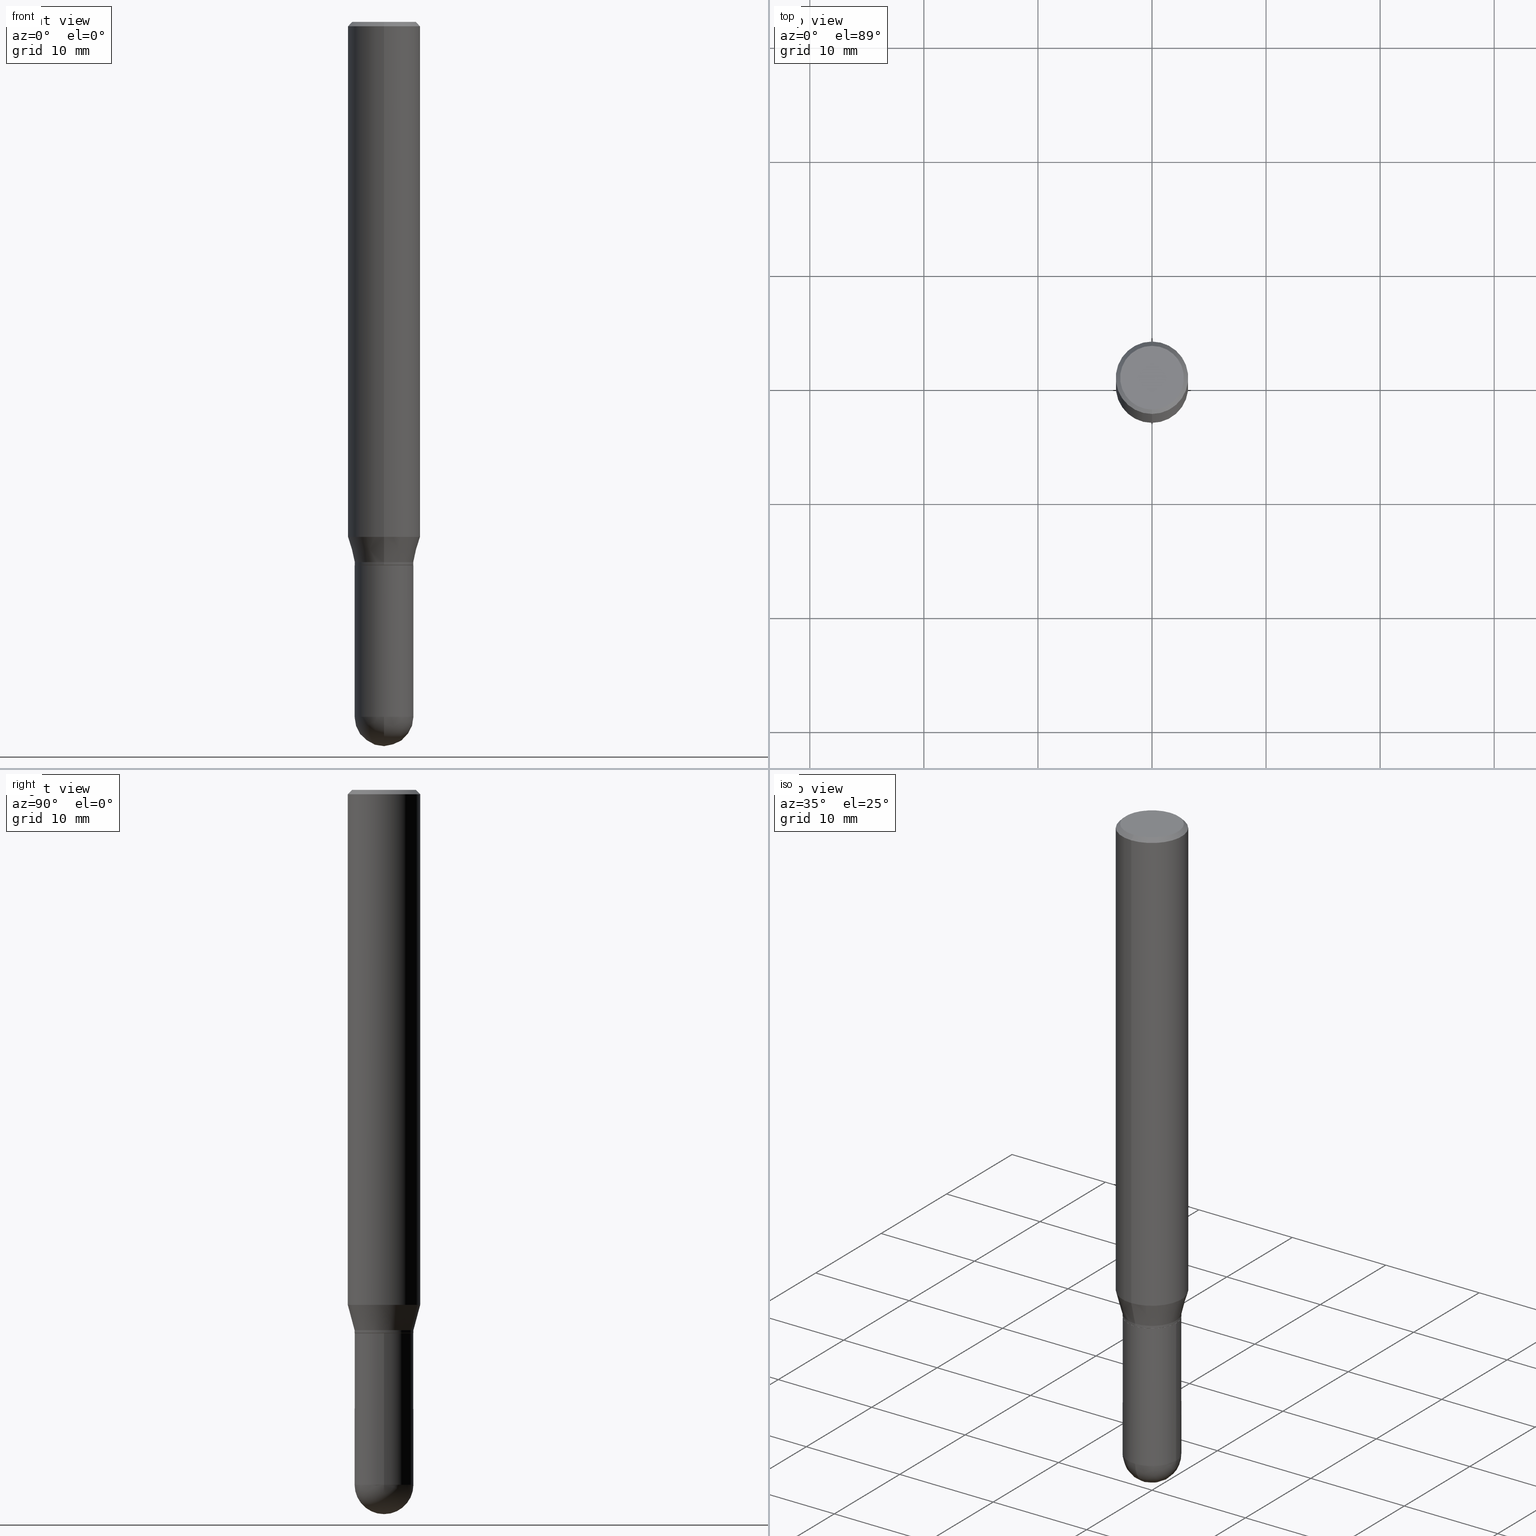
[diagram: canonical four-view strip — front | top / right | iso, engineering-drawing reading convention]
A machine part, canonical four-view strip (front | top / right | iso — engineering-drawing reading convention). The complete STEP part file that produces these views, byte-faithful:
ISO-10303-21;
HEADER;
FILE_DESCRIPTION (( 'STEP AP203' ),
    '1' );
FILE_NAME ('30483.STEP',
    '2024-03-08T15:25:39',
    ( '' ),
    ( '' ),
    'SwSTEP 2.0',
    'SolidWorks 2023',
    '' );
FILE_SCHEMA (( 'CONFIG_CONTROL_DESIGN' ));
ENDSEC;

DATA;
#1 = FACE_OUTER_BOUND ( 'NONE', #202, .T. ) ;
#2 = DIRECTION ( 'NONE',  ( 1.000000000000000000, -6.982962677686258033E-15, 0.000000000000000000 ) ) ;
#3 = DESIGN_CONTEXT ( 'detailed design', #112, 'design' ) ;
#4 = DIRECTION ( 'NONE',  ( -6.982962677686266711E-15, -1.000000000000000000, 3.491458814188467583E-15 ) ) ;
#5 = CARTESIAN_POINT ( 'NONE',  ( 4.585283503251433812E-29, -6.546485276603377605E-15, -1.875000000000000000 ) ) ;
#6 = DATE_AND_TIME ( #499, #166 ) ;
#7 = DIRECTION ( 'NONE',  ( -2.445468806185136597E-29, 3.491481338843145583E-15, 1.000000000000000000 ) ) ;
#8 = VECTOR ( 'NONE', #18, 39.37007874015748143 ) ;
#9 = CARTESIAN_POINT ( 'NONE',  ( 0.1015500000000000985, -8.169455323658661228E-15, -2.398450000000000415 ) ) ;
#10 = DIRECTION ( 'NONE',  ( -2.445484535067431049E-29, 3.491458814188467583E-15, 1.000000000000000000 ) ) ;
#11 = DIRECTION ( 'NONE',  ( -2.445484535067431049E-29, 3.491458814188467583E-15, 1.000000000000000000 ) ) ;
#12 = LINE ( 'NONE', #56, #55 ) ;
#13 = CARTESIAN_POINT ( 'NONE',  ( -7.056283785801518238E-16, -0.1010500000000066068, -1.874999999999999778 ) ) ;
#14 = CARTESIAN_POINT ( 'NONE',  ( -8.728703347107832402E-16, -0.1250000000000000000, 4.364323517735584479E-16 ) ) ;
#15 = CIRCLE ( 'NONE', #320, 0.1015500000000000985 ) ;
#16 = PRODUCT_RELATED_PRODUCT_CATEGORY ( 'detail', '', ( #40 ) ) ;
#17 = DATE_AND_TIME ( #449, #304 ) ;
#18 = DIRECTION ( 'NONE',  ( 1.839019923739600710E-15, 0.2588190451025250138, 0.9659258262890670910 ) ) ;
#19 = ORIENTED_EDGE ( 'NONE', *, *, #26, .F. ) ;
#20 = PERSON_AND_ORGANIZATION ( #507, #98 ) ;
#21 = LINE ( 'NONE', #496, #8 ) ;
#22 = ORIENTED_EDGE ( 'NONE', *, *, #454, .T. ) ;
#23 = LINE ( 'NONE', #417, #159 ) ;
#24 = DATE_AND_TIME ( #495, #109 ) ;
#25 = DIRECTION ( 'NONE',  ( -2.445484535067431049E-29, 3.491458814188467583E-15, 1.000000000000000000 ) ) ;
#26 = EDGE_CURVE ( 'NONE', #209, #344, #445, .T. ) ;
#27 = CIRCLE ( 'NONE', #373, 0.1100000000000000283 ) ;
#28 = PERSON_AND_ORGANIZATION_ROLE ( 'creator' ) ;
#29 = CARTESIAN_POINT ( 'NONE',  ( 4.560828657900758226E-29, -6.511570688461491770E-15, -1.864999999999999991 ) ) ;
#30 = EDGE_LOOP ( 'NONE', ( #210, #235, #354, #468 ) ) ;
#31 = CARTESIAN_POINT ( 'NONE',  ( 0.000000000000000000, 0.000000000000000000, 0.000000000000000000 ) ) ;
#32 = ORIENTED_EDGE ( 'NONE', *, *, #220, .F. ) ;
#33 = EDGE_LOOP ( 'NONE', ( #509, #272, #19, #284, #191 ) ) ;
#34 = CC_DESIGN_DATE_AND_TIME_ASSIGNMENT ( #17, #105, ( #315 ) ) ;
#35 = AXIS2_PLACEMENT_3D ( 'NONE', #5, #169, #490 ) ;
#36 = CONICAL_SURFACE ( 'NONE', #486, 0.1010500000000000703, 0.7853981633974653764 ) ;
#37 = ORIENTED_EDGE ( 'NONE', *, *, #376, .F. ) ;
#38 = COORDINATED_UNIVERSAL_TIME_OFFSET ( 5, 0, .BEHIND. ) ;
#39 = VERTEX_POINT ( 'NONE', #282 ) ;
#40 = PRODUCT ( '30483', '30483', '', ( #312 ) ) ;
#41 = VERTEX_POINT ( 'NONE', #80 ) ;
#42 = CC_DESIGN_DATE_AND_TIME_ASSIGNMENT ( #268, #418, ( #46 ) ) ;
#43 = AXIS2_PLACEMENT_3D ( 'NONE', #253, #11, #100 ) ;
#44 = AXIS2_PLACEMENT_3D ( 'NONE', #233, #193, #223 ) ;
#45 = VERTEX_POINT ( 'NONE', #238 ) ;
#46 = SECURITY_CLASSIFICATION ( '', '', #458 ) ;
#47 = CARTESIAN_POINT ( 'NONE',  ( 0.1015500000000000708, -7.091198599190408807E-16, 4.951757515820776576E-30 ) ) ;
#48 = ADVANCED_FACE ( 'NONE', ( #397 ), #476, .T. ) ;
#49 = DIRECTION ( 'NONE',  ( -2.445484535067431049E-29, 3.491458814188467583E-15, 1.000000000000000000 ) ) ;
#50 = DIRECTION ( 'NONE',  ( 2.445484535067431049E-29, -3.491458814188467583E-15, -1.000000000000000000 ) ) ;
#51 = CARTESIAN_POINT ( 'NONE',  ( -8.575622497214409523E-16, -0.1250000000000000555, -0.01499999999999956403 ) ) ;
#52 = DIRECTION ( 'NONE',  ( 2.438088387897960049E-29, -3.491481338843145188E-15, -1.000000000000000000 ) ) ;
#53 = DIRECTION ( 'NONE',  ( -6.982962677686266711E-15, -1.000000000000000000, 3.491458814188467583E-15 ) ) ;
#54 = SPHERICAL_SURFACE ( 'NONE', #94, 0.1015499999999999736 ) ;
#55 = VECTOR ( 'NONE', #361, 39.37007874015748143 ) ;
#56 = CARTESIAN_POINT ( 'NONE',  ( 7.180034344856274914E-16, 0.1010499999999935339, -1.875000000000000444 ) ) ;
#57 = DIRECTION ( 'NONE',  ( -2.445484535067431049E-29, 3.491458814188467583E-15, 1.000000000000000000 ) ) ;
#58 = DIRECTION ( 'NONE',  ( -6.982962677686265922E-15, -1.000000000000000000, 3.483106191921935554E-15 ) ) ;
#59 = DIRECTION ( 'NONE',  ( 1.000000000000000000, -6.982962677686269866E-15, 0.000000000000000000 ) ) ;
#60 = CC_DESIGN_PERSON_AND_ORGANIZATION_ASSIGNMENT ( #132, #392, ( #315 ) ) ;
#61 = DIRECTION ( 'NONE',  ( -2.445484535067431049E-29, 3.491458814188467583E-15, 1.000000000000000000 ) ) ;
#62 = ORIENTED_EDGE ( 'NONE', *, *, #212, .T. ) ;
#63 = VECTOR ( 'NONE', #478, 39.37007874015748143 ) ;
#64 = LENGTH_MEASURE_WITH_UNIT ( LENGTH_MEASURE( 0.02539999999999999897 ), #346 );
#65 = ORIENTED_EDGE ( 'NONE', *, *, #440, .T. ) ;
#66 = CARTESIAN_POINT ( 'NONE',  ( 4.584060760983900341E-29, -6.544739547196283432E-15, -1.874500000000000277 ) ) ;
#67 = ADVANCED_FACE ( 'NONE', ( #298 ), #447, .F. ) ;
#68 = LINE ( 'NONE', #306, #359 ) ;
#69 = EDGE_LOOP ( 'NONE', ( #85, #107 ) ) ;
#70 = DIRECTION ( 'NONE',  ( -6.982962677686265922E-15, -1.000000000000000000, 3.483106191921935554E-15 ) ) ;
#71 = CALENDAR_DATE ( 2024, 8, 3 ) ;
#72 = DIRECTION ( 'NONE',  ( -6.982962677686266711E-15, -1.000000000000000000, 2.690150658458161914E-15 ) ) ;
#73 = ORIENTED_EDGE ( 'NONE', *, *, #400, .F. ) ;
#74 = DIRECTION ( 'NONE',  ( -6.982962677686266711E-15, -1.000000000000000000, 2.690150658458161914E-15 ) ) ;
#75 = CLOSED_SHELL ( 'NONE', ( #387, #505, #391, #255, #163, #443, #471, #143, #469, #200, #427, #101 ) ) ;
#76 = VECTOR ( 'NONE', #444, 39.37007874015748143 ) ;
#77 = CC_DESIGN_APPROVAL ( #155, ( #315 ) ) ;
#78 = ORIENTED_EDGE ( 'NONE', *, *, #423, .F. ) ;
#79 = EDGE_CURVE ( 'NONE', #278, #45, #174, .T. ) ;
#80 = CARTESIAN_POINT ( 'NONE',  ( -7.091198599189946337E-16, -0.1015500000000064962, -1.864999999999999547 ) ) ;
#81 = ADVANCED_FACE ( 'NONE', ( #332 ), #54, .T. ) ;
#82 = PERSON_AND_ORGANIZATION ( #507, #98 ) ;
#83 = CARTESIAN_POINT ( 'NONE',  ( 4.585254011597131119E-29, -6.546527510330898707E-15, -1.875000000000000000 ) ) ;
#84 = LOCAL_TIME ( 10, 25, 39.00000000000000000, #152 ) ;
#85 = ORIENTED_EDGE ( 'NONE', *, *, #220, .T. ) ;
#86 = EDGE_CURVE ( 'NONE', #120, #382, #139, .T. ) ;
#87 = VERTEX_POINT ( 'NONE', #13 ) ;
#88 = ORIENTED_EDGE ( 'NONE', *, *, #170, .F. ) ;
#89 = DIRECTION ( 'NONE',  ( 6.982962677686265922E-15, 1.000000000000000000, -3.483106191921935554E-15 ) ) ;
#90 = AXIS2_PLACEMENT_3D ( 'NONE', #168, #363, #4 ) ;
#91 = VECTOR ( 'NONE', #365, 39.37007874015748143 ) ;
#92 = CARTESIAN_POINT ( 'NONE',  ( 5.899408758987094508E-29, -8.325347365436315775E-15, -2.398450000000000415 ) ) ;
#93 = DIRECTION ( 'NONE',  ( -2.445468806185136597E-29, 3.491481338843145583E-15, 1.000000000000000000 ) ) ;
#94 = AXIS2_PLACEMENT_3D ( 'NONE', #92, #219, #214 ) ;
#95 = CARTESIAN_POINT ( 'NONE',  ( 8.048672839322978639E-16, 0.1015499999999934788, -1.865000000000000213 ) ) ;
#96 = CIRCLE ( 'NONE', #390, 0.1015500000000000708 ) ;
#97 = DIRECTION ( 'NONE',  ( -2.445468806185136597E-29, 3.491481338843145583E-15, 1.000000000000000000 ) ) ;
#98 = ORGANIZATION ( 'UNSPECIFIED', 'UNSPECIFIED', '' ) ;
#99 = DIRECTION ( 'NONE',  ( -2.445468806185136877E-29, 3.491481338843145188E-15, 1.000000000000000000 ) ) ;
#100 = DIRECTION ( 'NONE',  ( -6.982962677686265922E-15, -1.000000000000000000, 3.491458814188467188E-15 ) ) ;
#101 = ADVANCED_FACE ( 'NONE', ( #1 ), #213, .T. ) ;
#102 = DIRECTION ( 'NONE',  ( 6.982962677686265922E-15, 1.000000000000000000, -3.491458814188467188E-15 ) ) ;
#103 = ORIENTED_EDGE ( 'NONE', *, *, #454, .F. ) ;
#104 = EDGE_CURVE ( 'NONE', #39, #41, #366, .T. ) ;
#105 = DATE_TIME_ROLE ( 'creation_date' ) ;
#106 = DIRECTION ( 'NONE',  ( -6.982962677686266711E-15, -1.000000000000000000, 2.690150658458161914E-15 ) ) ;
#107 = ORIENTED_EDGE ( 'NONE', *, *, #86, .T. ) ;
#108 = CARTESIAN_POINT ( 'NONE',  ( 8.881784197001684225E-16, 0.1249999999999937828, -1.777483408562510636 ) ) ;
#109 = LOCAL_TIME ( 10, 25, 39.00000000000000000, #425 ) ;
#110 = CARTESIAN_POINT ( 'NONE',  ( 0.000000000000000000, 0.000000000000000000, 0.000000000000000000 ) ) ;
#111 = VERTEX_POINT ( 'NONE', #183 ) ;
#112 = APPLICATION_CONTEXT ( 'configuration controlled 3d designs of mechanical parts and assemblies' ) ;
#113 = DIRECTION ( 'NONE',  ( 1.000000000000000000, -6.982962677686266711E-15, 4.876176775795936353E-29 ) ) ;
#114 = CARTESIAN_POINT ( 'NONE',  ( 8.881784197001688169E-16, 0.1249999999999999445, -0.01500000000000043486 ) ) ;
#115 = APPROVAL_ROLE ( '' ) ;
#116 = DIRECTION ( 'NONE',  ( 1.000000000000000000, 0.000000000000000000, 0.000000000000000000 ) ) ;
#117 = SPHERICAL_SURFACE ( 'NONE', #224, 0.1015499999999999736 ) ;
#118 = VECTOR ( 'NONE', #134, 39.37007874015748143 ) ;
#119 = CONICAL_SURFACE ( 'NONE', #473, 0.1015499999999999875, 0.2617993877991502960 ) ;
#120 = VERTEX_POINT ( 'NONE', #252 ) ;
#121 = VERTEX_POINT ( 'NONE', #95 ) ;
#122 = EDGE_CURVE ( 'NONE', #41, #121, #295, .T. ) ;
#123 = ORIENTED_EDGE ( 'NONE', *, *, #181, .T. ) ;
#124 = DIRECTION ( 'NONE',  ( 6.982962677686266711E-15, 1.000000000000000000, -2.690150658458162309E-15 ) ) ;
#125 = EDGE_CURVE ( 'NONE', #355, #111, #358, .T. ) ;
#126 = CIRCLE ( 'NONE', #44, 0.1015500000000000985 ) ;
#127 = ORIENTED_EDGE ( 'NONE', *, *, #207, .F. ) ;
#128 = ORIENTED_EDGE ( 'NONE', *, *, #376, .T. ) ;
#129 = CARTESIAN_POINT ( 'NONE',  ( 7.215561481644268122E-16, 0.1015499999999933678, -1.874500000000000499 ) ) ;
#130 = DIRECTION ( 'NONE',  ( 6.982962677686265922E-15, 1.000000000000000000, -3.483106191921935554E-15 ) ) ;
#131 = CARTESIAN_POINT ( 'NONE',  ( 4.585283503251433812E-29, -6.546485276603377605E-15, -1.875000000000000000 ) ) ;
#132 = PERSON_AND_ORGANIZATION ( #507, #98 ) ;
#133 = VECTOR ( 'NONE', #334, 39.37007874015748143 ) ;
#134 = DIRECTION ( 'NONE',  ( -2.445484535067430768E-29, 3.491458814188467188E-15, 1.000000000000000000 ) ) ;
#135 = APPROVAL ( #262, 'UNSPECIFIED' ) ;
#136 = DIRECTION ( 'NONE',  ( -2.445484535067431049E-29, 3.491458814188467583E-15, 1.000000000000000000 ) ) ;
#137 = CARTESIAN_POINT ( 'NONE',  ( 4.346808186978562239E-29, -6.206010113899336320E-15, -1.777483408562509970 ) ) ;
#138 = CC_DESIGN_PERSON_AND_ORGANIZATION_ASSIGNMENT ( #348, #28, ( #141 ) ) ;
#139 = CIRCLE ( 'NONE', #43, 0.1100000000000000283 ) ;
#140 = CIRCLE ( 'NONE', #510, 0.1015499999999999875 ) ;
#141 = PRODUCT_DEFINITION_FORMATION_WITH_SPECIFIED_SOURCE ( 'ANY', '', #40, .NOT_KNOWN. ) ;
#142 = CARTESIAN_POINT ( 'NONE',  ( 4.585283503251433812E-29, -6.546485276603377605E-15, -1.875000000000000000 ) ) ;
#143 = ADVANCED_FACE ( 'NONE', ( #324 ), #205, .T. ) ;
#144 = DIRECTION ( 'NONE',  ( -1.000000000000000000, 7.105427357601001070E-15, -4.926315508542082329E-29 ) ) ;
#145 = CARTESIAN_POINT ( 'NONE',  ( -0.1015500000000000985, -6.738779315575238500E-15, -2.398450000000000415 ) ) ;
#146 = DIRECTION ( 'NONE',  ( -6.982962677686265922E-15, -1.000000000000000000, 3.491458814188467583E-15 ) ) ;
#147 = ORIENTED_EDGE ( 'NONE', *, *, #270, .T. ) ;
#148 = CARTESIAN_POINT ( 'NONE',  ( 0.000000000000000000, 0.000000000000000000, 0.000000000000000000 ) ) ;
#149 = PERSON_AND_ORGANIZATION_ROLE ( 'classification_officer' ) ;
#150 = AXIS2_PLACEMENT_3D ( 'NONE', #448, #419, #307 ) ;
#151 = DIRECTION ( 'NONE',  ( -2.445484535067430768E-29, 3.491458814188467188E-15, 1.000000000000000000 ) ) ;
#152 = COORDINATED_UNIVERSAL_TIME_OFFSET ( 5, 0, .BEHIND. ) ;
#153 = FACE_OUTER_BOUND ( 'NONE', #475, .T. ) ;
#154 = DIRECTION ( 'NONE',  ( -4.937700262164631661E-15, -0.7071067811865571207, 0.7071067811865379138 ) ) ;
#155 = APPROVAL ( #239, 'UNSPECIFIED' ) ;
#156 = APPROVAL_ROLE ( '' ) ;
#157 = ORIENTED_EDGE ( 'NONE', *, *, #305, .T. ) ;
#158 = AXIS2_PLACEMENT_3D ( 'NONE', #259, #171, #326 ) ;
#159 = VECTOR ( 'NONE', #154, 39.37007874015748143 ) ;
#160 = COORDINATED_UNIVERSAL_TIME_OFFSET ( 5, 0, .BEHIND. ) ;
#161 = ORIENTED_EDGE ( 'NONE', *, *, #79, .F. ) ;
#162 = ORIENTED_EDGE ( 'NONE', *, *, #385, .F. ) ;
#163 = ADVANCED_FACE ( 'NONE', ( #286 ), #119, .T. ) ;
#164 = ORIENTED_EDGE ( 'NONE', *, *, #372, .F. ) ;
#165 = AXIS2_PLACEMENT_3D ( 'NONE', #231, #463, #455 ) ;
#166 = LOCAL_TIME ( 10, 25, 39.00000000000000000, #388 ) ;
#167 = ORIENTED_EDGE ( 'NONE', *, *, #104, .F. ) ;
#168 = CARTESIAN_POINT ( 'NONE',  ( 0.000000000000000000, 0.000000000000000000, 0.000000000000000000 ) ) ;
#169 = DIRECTION ( 'NONE',  ( -2.445484535067431049E-29, 3.491458814188467583E-15, 1.000000000000000000 ) ) ;
#170 = EDGE_CURVE ( 'NONE', #341, #344, #68, .T. ) ;
#171 = DIRECTION ( 'NONE',  ( -2.445484535067431049E-29, 3.491458814188467583E-15, 1.000000000000000000 ) ) ;
#172 = APPROVAL_DATE_TIME ( #6, #155 ) ;
#173 = CARTESIAN_POINT ( 'NONE',  ( 3.975789068314252337E-48, -5.676299967089012762E-34, -1.625767413902138821E-19 ) ) ;
#174 = CIRCLE ( 'NONE', #249, 0.1250000000000000000 ) ;
#175 = AXIS2_PLACEMENT_3D ( 'NONE', #230, #61, #106 ) ;
#176 = CARTESIAN_POINT ( 'NONE',  ( 0.000000000000000000, 0.000000000000000000, 0.000000000000000000 ) ) ;
#177 = APPROVAL_PERSON_ORGANIZATION ( #182, #135, #156 ) ;
#178 = FACE_OUTER_BOUND ( 'NONE', #280, .T. ) ;
#179 = CARTESIAN_POINT ( 'NONE',  ( -7.091198599190402890E-16, -0.1015499999999999875, 3.545576425808388340E-16 ) ) ;
#180 = DIRECTION ( 'NONE',  ( 1.000000000000000000, -6.982962677686258033E-15, 0.000000000000000000 ) ) ;
#181 = EDGE_CURVE ( 'NONE', #386, #209, #485, .T. ) ;
#182 = PERSON_AND_ORGANIZATION ( #507, #98 ) ;
#183 = CARTESIAN_POINT ( 'NONE',  ( -8.728703347107828458E-16, -0.1250000000000000555, -0.01499999999999956403 ) ) ;
#184 = DIRECTION ( 'NONE',  ( 1.000000000000000000, -6.982962677686265922E-15, 4.883557194083112340E-29 ) ) ;
#185 = AXIS2_PLACEMENT_3D ( 'NONE', #148, #500, #302 ) ;
#186 =( NAMED_UNIT ( * ) SI_UNIT ( $, .STERADIAN. ) SOLID_ANGLE_UNIT ( ) );
#187 = CARTESIAN_POINT ( 'NONE',  ( 7.681258945454894762E-16, 0.1100000000000000283, -3.841417579314265946E-16 ) ) ;
#188 = ORIENTED_EDGE ( 'NONE', *, *, #512, .T. ) ;
#189 = SHAPE_DEFINITION_REPRESENTATION ( #353, #222 ) ;
#190 = CYLINDRICAL_SURFACE ( 'NONE', #430, 0.1250000000000000000 ) ;
#191 = ORIENTED_EDGE ( 'NONE', *, *, #247, .T. ) ;
#192 = CARTESIAN_POINT ( 'NONE',  ( 3.668226802601146923E-31, -5.237188221282701522E-17, -0.01499999999999999944 ) ) ;
#193 = DIRECTION ( 'NONE',  ( -2.445468806185136597E-29, 3.491481338843145583E-15, 1.000000000000000000 ) ) ;
#194 = CIRCLE ( 'NONE', #150, 0.1010500000000000703 ) ;
#195 = CARTESIAN_POINT ( 'NONE',  ( 7.197797913250275462E-16, 0.1010499999999935339, -1.875000000000000444 ) ) ;
#196 = CIRCLE ( 'NONE', #297, 0.1015499999999999736 ) ;
#197 = CYLINDRICAL_SURFACE ( 'NONE', #321, 0.1015500000000000708 ) ;
#198 = ORIENTED_EDGE ( 'NONE', *, *, #489, .T. ) ;
#199 = DIRECTION ( 'NONE',  ( 1.000000000000000000, -6.982962677686258033E-15, 0.000000000000000000 ) ) ;
#200 = ADVANCED_FACE ( 'NONE', ( #257 ), #442, .F. ) ;
#201 = APPROVAL_DATE_TIME ( #276, #327 ) ;
#202 = EDGE_LOOP ( 'NONE', ( #164, #65, #237, #511 ) ) ;
#203 = EDGE_CURVE ( 'NONE', #299, #460, #258, .T. ) ;
#204 = EDGE_LOOP ( 'NONE', ( #313, #128, #323, #264 ) ) ;
#205 = CONICAL_SURFACE ( 'NONE', #467, 0.1250000000000000000, 0.7853981633974473908 ) ;
#206 = APPROVAL_PERSON_ORGANIZATION ( #229, #327, #115 ) ;
#207 = EDGE_CURVE ( 'NONE', #87, #347, #336, .T. ) ;
#208 = ORIENTED_EDGE ( 'NONE', *, *, #226, .T. ) ;
#209 = VERTEX_POINT ( 'NONE', #399 ) ;
#210 = ORIENTED_EDGE ( 'NONE', *, *, #512, .F. ) ;
#211 = CC_DESIGN_APPROVAL ( #327, ( #46 ) ) ;
#212 = EDGE_CURVE ( 'NONE', #120, #111, #293, .T. ) ;
#213 = CYLINDRICAL_SURFACE ( 'NONE', #90, 0.1015499999999999875 ) ;
#214 = DIRECTION ( 'NONE',  ( 6.982962677686266711E-15, 1.000000000000000000, -2.690150658458162309E-15 ) ) ;
#215 = FACE_OUTER_BOUND ( 'NONE', #316, .T. ) ;
#216 = UNCERTAINTY_MEASURE_WITH_UNIT (LENGTH_MEASURE( 1.000000000000000082E-05 ), #227, 'distance_accuracy_value', 'NONE');
#217 = VECTOR ( 'NONE', #261, 39.37007874015748143 ) ;
#218 = CC_DESIGN_APPROVAL ( #135, ( #141 ) ) ;
#219 = DIRECTION ( 'NONE',  ( -1.000000000000000000, 6.982962677686266711E-15, -4.883557194083112901E-29 ) ) ;
#220 = EDGE_CURVE ( 'NONE', #382, #120, #27, .T. ) ;
#221 = CARTESIAN_POINT ( 'NONE',  ( 3.668226802601146923E-31, -5.237188221282701522E-17, -0.01499999999999999944 ) ) ;
#222 = ADVANCED_BREP_SHAPE_REPRESENTATION ( '30483', ( #439, #287, #412 ), #251 ) ;
#223 = DIRECTION ( 'NONE',  ( 1.000000000000000000, -6.982962677686258033E-15, 0.000000000000000000 ) ) ;
#224 = AXIS2_PLACEMENT_3D ( 'NONE', #407, #241, #124 ) ;
#225 = LINE ( 'NONE', #379, #217 ) ;
#226 = EDGE_CURVE ( 'NONE', #344, #209, #96, .T. ) ;
#227 =( CONVERSION_BASED_UNIT ( 'INCH', #64 ) LENGTH_UNIT ( ) NAMED_UNIT ( #292 ) );
#228 = CARTESIAN_POINT ( 'NONE',  ( -0.1015500000000000708, -6.738779315575238500E-15, -1.875000000000000000 ) ) ;
#229 = PERSON_AND_ORGANIZATION ( #507, #98 ) ;
#230 = CARTESIAN_POINT ( 'NONE',  ( 4.584060760983900341E-29, -6.544739547196283432E-15, -1.874500000000000277 ) ) ;
#231 = CARTESIAN_POINT ( 'NONE',  ( 4.346808186978562239E-29, -6.206010113899336320E-15, -1.777483408562509970 ) ) ;
#232 = AXIS2_PLACEMENT_3D ( 'NONE', #176, #7, #441 ) ;
#233 = CARTESIAN_POINT ( 'NONE',  ( 5.865334658194741045E-29, -8.374143417148343763E-15, -2.398450000000000415 ) ) ;
#234 = CC_DESIGN_PERSON_AND_ORGANIZATION_ASSIGNMENT ( #277, #279, ( #40 ) ) ;
#235 = ORIENTED_EDGE ( 'NONE', *, *, #203, .T. ) ;
#236 = AXIS2_PLACEMENT_3D ( 'NONE', #66, #339, #488 ) ;
#237 = ORIENTED_EDGE ( 'NONE', *, *, #104, .T. ) ;
#238 = CARTESIAN_POINT ( 'NONE',  ( -8.728703347107399515E-16, -0.1250000000000062172, -1.777483408562509526 ) ) ;
#239 = APPROVAL_STATUS ( 'not_yet_approved' ) ;
#240 = DIRECTION ( 'NONE',  ( -2.445468806185136597E-29, 3.491481338843145583E-15, 1.000000000000000000 ) ) ;
#241 = DIRECTION ( 'NONE',  ( -1.000000000000000000, 6.982962677686266711E-15, -4.883557194083112901E-29 ) ) ;
#242 = AXIS2_PLACEMENT_3D ( 'NONE', #187, #406, #102 ) ;
#243 = CONICAL_SURFACE ( 'NONE', #456, 0.1015499999999999875, 0.2617993877991502960 ) ;
#244 = ORIENTED_EDGE ( 'NONE', *, *, #464, .T. ) ;
#245 = ORIENTED_EDGE ( 'NONE', *, *, #423, .T. ) ;
#246 = EDGE_LOOP ( 'NONE', ( #318, #32, #198, #493 ) ) ;
#247 = EDGE_CURVE ( 'NONE', #386, #460, #15, .T. ) ;
#248 = FACE_OUTER_BOUND ( 'NONE', #384, .T. ) ;
#249 = AXIS2_PLACEMENT_3D ( 'NONE', #137, #49, #477 ) ;
#250 = AXIS2_PLACEMENT_3D ( 'NONE', #142, #362, #325 ) ;
#251 =( GEOMETRIC_REPRESENTATION_CONTEXT ( 3 ) GLOBAL_UNCERTAINTY_ASSIGNED_CONTEXT ( ( #216 ) ) GLOBAL_UNIT_ASSIGNED_CONTEXT ( ( #227, #462, #186 ) ) REPRESENTATION_CONTEXT ( 'NONE', 'WORKASPACE' ) );
#252 = CARTESIAN_POINT ( 'NONE',  ( -8.061085147381547495E-16, -0.1100000000000000283, 3.838978928193412689E-16 ) ) ;
#253 = CARTESIAN_POINT ( 'NONE',  ( 3.975789068314252337E-48, -5.676299967089012762E-34, -1.625767413902138821E-19 ) ) ;
#254 = DIRECTION ( 'NONE',  ( -6.982962677686265922E-15, -1.000000000000000000, 3.491458814188467188E-15 ) ) ;
#255 = ADVANCED_FACE ( 'NONE', ( #269 ), #461, .T. ) ;
#256 = LINE ( 'NONE', #14, #289 ) ;
#257 = FACE_OUTER_BOUND ( 'NONE', #487, .T. ) ;
#258 = CIRCLE ( 'NONE', #396, 0.1015499999999999736 ) ;
#259 = CARTESIAN_POINT ( 'NONE',  ( 4.560828657900758226E-29, -6.511570688461491770E-15, -1.864999999999999991 ) ) ;
#260 = CARTESIAN_POINT ( 'NONE',  ( 5.899408758987094508E-29, -8.325347365436315775E-15, -2.398450000000000415 ) ) ;
#261 = DIRECTION ( 'NONE',  ( 4.937700262164543309E-15, 0.7071067811865444641, -0.7071067811865505703 ) ) ;
#262 = APPROVAL_STATUS ( 'not_yet_approved' ) ;
#263 = FACE_OUTER_BOUND ( 'NONE', #204, .T. ) ;
#264 = ORIENTED_EDGE ( 'NONE', *, *, #322, .F. ) ;
#265 = VECTOR ( 'NONE', #151, 39.37007874015748143 ) ;
#266 = FACE_OUTER_BOUND ( 'NONE', #309, .T. ) ;
#267 = DIRECTION ( 'NONE',  ( -2.445484535067431049E-29, 3.491458814188467583E-15, 1.000000000000000000 ) ) ;
#268 = DATE_AND_TIME ( #383, #337 ) ;
#269 = FACE_OUTER_BOUND ( 'NONE', #431, .T. ) ;
#270 = EDGE_CURVE ( 'NONE', #45, #278, #314, .T. ) ;
#271 = FACE_OUTER_BOUND ( 'NONE', #69, .T. ) ;
#272 = ORIENTED_EDGE ( 'NONE', *, *, #170, .T. ) ;
#273 = CARTESIAN_POINT ( 'NONE',  ( 4.560828657900758226E-29, -6.511570688461491770E-15, -1.864999999999999991 ) ) ;
#274 = CONICAL_SURFACE ( 'NONE', #367, 0.1250000000000000000, 0.7853981633974473908 ) ;
#275 = CC_DESIGN_SECURITY_CLASSIFICATION ( #46, ( #141 ) ) ;
#276 = DATE_AND_TIME ( #71, #84 ) ;
#277 = PERSON_AND_ORGANIZATION ( #507, #98 ) ;
#278 = VERTEX_POINT ( 'NONE', #108 ) ;
#279 = PERSON_AND_ORGANIZATION_ROLE ( 'design_owner' ) ;
#280 = EDGE_LOOP ( 'NONE', ( #157, #416, #357, #167 ) ) ;
#281 = EDGE_LOOP ( 'NONE', ( #393, #208 ) ) ;
#282 = CARTESIAN_POINT ( 'NONE',  ( -7.091198599189950281E-16, -0.1015500000000066211, -1.874499999999999833 ) ) ;
#283 = EDGE_CURVE ( 'NONE', #111, #355, #446, .T. ) ;
#284 = ORIENTED_EDGE ( 'NONE', *, *, #181, .F. ) ;
#285 = CARTESIAN_POINT ( 'NONE',  ( -7.215561481643230770E-16, -0.1015500000000083697, -2.398449999999999971 ) ) ;
#286 = FACE_OUTER_BOUND ( 'NONE', #301, .T. ) ;
#287 = MANIFOLD_SOLID_BREP ( 'Body-Move/Copy2[2]', #75 ) ;
#288 = DIRECTION ( 'NONE',  ( -6.982962677686265922E-15, -1.000000000000000000, 2.703461646377299523E-15 ) ) ;
#289 = VECTOR ( 'NONE', #333, 39.37007874015748143 ) ;
#290 = DIRECTION ( 'NONE',  ( -2.445484535067431049E-29, 3.491458814188467583E-15, 1.000000000000000000 ) ) ;
#291 = CARTESIAN_POINT ( 'NONE',  ( 0.000000000000000000, 0.000000000000000000, 0.000000000000000000 ) ) ;
#292 = DIMENSIONAL_EXPONENTS ( 1.000000000000000000, 0.000000000000000000, 0.000000000000000000, 0.000000000000000000, 0.000000000000000000, 0.000000000000000000, 0.000000000000000000 ) ;
#293 = LINE ( 'NONE', #51, #91 ) ;
#294 = DIRECTION ( 'NONE',  ( -1.000000000000000000, 6.982962677686265922E-15, -4.876176775795935793E-29 ) ) ;
#295 = CIRCLE ( 'NONE', #158, 0.1015499999999999875 ) ;
#296 = CIRCLE ( 'NONE', #303, 0.1015500000000000985 ) ;
#297 = AXIS2_PLACEMENT_3D ( 'NONE', #340, #144, #450 ) ;
#298 = FACE_OUTER_BOUND ( 'NONE', #281, .T. ) ;
#299 = VERTEX_POINT ( 'NONE', #415 ) ;
#300 = DIRECTION ( 'NONE',  ( -2.445484535067431049E-29, 3.491458814188467583E-15, 1.000000000000000000 ) ) ;
#301 = EDGE_LOOP ( 'NONE', ( #453, #22, #472, #78 ) ) ;
#302 = DIRECTION ( 'NONE',  ( -6.982962677686265922E-15, -1.000000000000000000, 3.491458814188467583E-15 ) ) ;
#303 = AXIS2_PLACEMENT_3D ( 'NONE', #328, #97, #180 ) ;
#304 = LOCAL_TIME ( 10, 25, 39.00000000000000000, #38 ) ;
#305 = EDGE_CURVE ( 'NONE', #39, #409, #479, .T. ) ;
#306 = CARTESIAN_POINT ( 'NONE',  ( -0.1015500000000000708, 7.215561481643822416E-16, -4.995178584153860605E-30 ) ) ;
#307 = DIRECTION ( 'NONE',  ( -6.982962677686265922E-15, -1.000000000000000000, 2.703461646377299523E-15 ) ) ;
#308 = APPROVAL_DATE_TIME ( #24, #135 ) ;
#309 = EDGE_LOOP ( 'NONE', ( #470, #317, #414, #451 ) ) ;
#310 = DIRECTION ( 'NONE',  ( -2.445468806185136597E-29, 3.491481338843145583E-15, 1.000000000000000000 ) ) ;
#311 = APPROVAL_STATUS ( 'not_yet_approved' ) ;
#312 = MECHANICAL_CONTEXT ( 'NONE', #498, 'mechanical' ) ;
#313 = ORIENTED_EDGE ( 'NONE', *, *, #207, .T. ) ;
#314 = CIRCLE ( 'NONE', #165, 0.1250000000000000000 ) ;
#315 = PRODUCT_DEFINITION ( 'UNKNOWN', '', #141, #3 ) ;
#316 = EDGE_LOOP ( 'NONE', ( #389, #62, #377, #424 ) ) ;
#317 = ORIENTED_EDGE ( 'NONE', *, *, #79, .T. ) ;
#318 = ORIENTED_EDGE ( 'NONE', *, *, #212, .F. ) ;
#319 = CLOSED_SHELL ( 'NONE', ( #497, #370, #67, #81, #48 ) ) ;
#320 = AXIS2_PLACEMENT_3D ( 'NONE', #378, #310, #199 ) ;
#321 = AXIS2_PLACEMENT_3D ( 'NONE', #110, #342, #113 ) ;
#322 = EDGE_CURVE ( 'NONE', #87, #39, #23, .T. ) ;
#323 = ORIENTED_EDGE ( 'NONE', *, *, #305, .F. ) ;
#324 = FACE_OUTER_BOUND ( 'NONE', #246, .T. ) ;
#325 = DIRECTION ( 'NONE',  ( -6.982962677686265922E-15, -1.000000000000000000, 3.491458814188467188E-15 ) ) ;
#326 = DIRECTION ( 'NONE',  ( -6.982962677686266711E-15, -1.000000000000000000, 2.690150658458161914E-15 ) ) ;
#327 = APPROVAL ( #311, 'UNSPECIFIED' ) ;
#328 = CARTESIAN_POINT ( 'NONE',  ( 5.865334658194741045E-29, -8.374143417148343763E-15, -2.398450000000000415 ) ) ;
#329 = CIRCLE ( 'NONE', #175, 0.1015499999999999875 ) ;
#330 = DIRECTION ( 'NONE',  ( -2.445468806185136597E-29, 3.491481338843145583E-15, 1.000000000000000000 ) ) ;
#331 = CARTESIAN_POINT ( 'NONE',  ( 7.091198599190867332E-16, 0.1015499999999935343, -1.875000000000000444 ) ) ;
#332 = FACE_OUTER_BOUND ( 'NONE', #30, .T. ) ;
#333 = DIRECTION ( 'NONE',  ( -2.445484535067430768E-29, 3.491458814188467188E-15, 1.000000000000000000 ) ) ;
#334 = DIRECTION ( 'NONE',  ( -2.445468806185136877E-29, 3.491481338843145188E-15, 1.000000000000000000 ) ) ;
#335 = EDGE_CURVE ( 'NONE', #278, #355, #494, .T. ) ;
#336 = CIRCLE ( 'NONE', #401, 0.1010500000000000703 ) ;
#337 = LOCAL_TIME ( 10, 25, 39.00000000000000000, #160 ) ;
#338 = PLANE ( 'NONE',  #242 ) ;
#339 = DIRECTION ( 'NONE',  ( -2.445484535067431049E-29, 3.491458814188467583E-15, 1.000000000000000000 ) ) ;
#340 = CARTESIAN_POINT ( 'NONE',  ( 5.899408758987094508E-29, -8.325347365436315775E-15, -2.398450000000000415 ) ) ;
#341 = VERTEX_POINT ( 'NONE', #145 ) ;
#342 = DIRECTION ( 'NONE',  ( -2.445468806185136597E-29, 3.491481338843145583E-15, 1.000000000000000000 ) ) ;
#343 = CC_DESIGN_PERSON_AND_ORGANIZATION_ASSIGNMENT ( #503, #149, ( #46 ) ) ;
#344 = VERTEX_POINT ( 'NONE', #228 ) ;
#345 = AXIS2_PLACEMENT_3D ( 'NONE', #291, #136, #53 ) ;
#346 =( LENGTH_UNIT ( ) NAMED_UNIT ( * ) SI_UNIT ( $, .METRE. ) );
#347 = VERTEX_POINT ( 'NONE', #195 ) ;
#348 = PERSON_AND_ORGANIZATION ( #507, #98 ) ;
#349 = APPROVAL_ROLE ( '' ) ;
#350 = FACE_OUTER_BOUND ( 'NONE', #429, .T. ) ;
#351 = ORIENTED_EDGE ( 'NONE', *, *, #356, .T. ) ;
#352 = ORIENTED_EDGE ( 'NONE', *, *, #335, .T. ) ;
#353 = PRODUCT_DEFINITION_SHAPE ( 'NONE', 'NONE',  #315 ) ;
#354 = ORIENTED_EDGE ( 'NONE', *, *, #247, .F. ) ;
#355 = VERTEX_POINT ( 'NONE', #114 ) ;
#356 = EDGE_CURVE ( 'NONE', #121, #41, #140, .T. ) ;
#357 = ORIENTED_EDGE ( 'NONE', *, *, #122, .F. ) ;
#358 = CIRCLE ( 'NONE', #436, 0.1250000000000000000 ) ;
#359 = VECTOR ( 'NONE', #99, 39.37007874015748143 ) ;
#360 = APPROVAL_PERSON_ORGANIZATION ( #82, #155, #349 ) ;
#361 = DIRECTION ( 'NONE',  ( 5.024295867788147587E-15, 0.7071067811865620056, 0.7071067811865330288 ) ) ;
#362 = DIRECTION ( 'NONE',  ( -2.445484535067431049E-29, 3.491458814188467188E-15, 1.000000000000000000 ) ) ;
#363 = DIRECTION ( 'NONE',  ( -2.445484535067431049E-29, 3.491458814188467583E-15, 1.000000000000000000 ) ) ;
#364 = LINE ( 'NONE', #434, #63 ) ;
#365 = DIRECTION ( 'NONE',  ( -4.851104656540959542E-15, -0.7071067811865493491, -0.7071067811865456854 ) ) ;
#366 = LINE ( 'NONE', #179, #118 ) ;
#367 = AXIS2_PLACEMENT_3D ( 'NONE', #398, #50, #89 ) ;
#368 = DIRECTION ( 'NONE',  ( 2.445484535067431049E-29, -3.491458814188467583E-15, -1.000000000000000000 ) ) ;
#369 = CYLINDRICAL_SURFACE ( 'NONE', #345, 0.1015499999999999875 ) ;
#370 = ADVANCED_FACE ( 'NONE', ( #350 ), #117, .T. ) ;
#371 = AXIS2_PLACEMENT_3D ( 'NONE', #83, #240, #426 ) ;
#372 = EDGE_CURVE ( 'NONE', #409, #121, #466, .T. ) ;
#373 = AXIS2_PLACEMENT_3D ( 'NONE', #173, #10, #254 ) ;
#374 = DIRECTION ( 'NONE',  ( -6.982962677686266711E-15, -1.000000000000000000, 2.690150658458161914E-15 ) ) ;
#375 = ORIENTED_EDGE ( 'NONE', *, *, #403, .F. ) ;
#376 = EDGE_CURVE ( 'NONE', #347, #409, #12, .T. ) ;
#377 = ORIENTED_EDGE ( 'NONE', *, *, #283, .T. ) ;
#378 = CARTESIAN_POINT ( 'NONE',  ( 5.865334658194741045E-29, -8.374143417148343763E-15, -2.398450000000000415 ) ) ;
#379 = CARTESIAN_POINT ( 'NONE',  ( 8.728703347107836346E-16, 0.1249999999999999445, -0.01500000000000043486 ) ) ;
#380 = CARTESIAN_POINT ( 'NONE',  ( 8.881784197001251337E-16, 0.1250000000000000000, -4.364323517735584479E-16 ) ) ;
#381 = CARTESIAN_POINT ( 'NONE',  ( 0.000000000000000000, 0.000000000000000000, 0.000000000000000000 ) ) ;
#382 = VERTEX_POINT ( 'NONE', #437 ) ;
#383 = CALENDAR_DATE ( 2024, 8, 3 ) ;
#384 = EDGE_LOOP ( 'NONE', ( #37, #474, #502, #432 ) ) ;
#385 = EDGE_CURVE ( 'NONE', #341, #420, #296, .T. ) ;
#386 = VERTEX_POINT ( 'NONE', #9 ) ;
#387 = ADVANCED_FACE ( 'NONE', ( #178 ), #369, .T. ) ;
#388 = COORDINATED_UNIVERSAL_TIME_OFFSET ( 5, 0, .BEHIND. ) ;
#389 = ORIENTED_EDGE ( 'NONE', *, *, #86, .F. ) ;
#390 = AXIS2_PLACEMENT_3D ( 'NONE', #405, #330, #59 ) ;
#391 = ADVANCED_FACE ( 'NONE', ( #215 ), #274, .T. ) ;
#392 = PERSON_AND_ORGANIZATION_ROLE ( 'creator' ) ;
#393 = ORIENTED_EDGE ( 'NONE', *, *, #26, .T. ) ;
#394 = ORIENTED_EDGE ( 'NONE', *, *, #481, .F. ) ;
#395 = ORIENTED_EDGE ( 'NONE', *, *, #385, .T. ) ;
#396 = AXIS2_PLACEMENT_3D ( 'NONE', #260, #184, #482 ) ;
#397 = FACE_OUTER_BOUND ( 'NONE', #506, .T. ) ;
#398 = CARTESIAN_POINT ( 'NONE',  ( 3.668226802601146923E-31, -5.237188221282701522E-17, -0.01499999999999999944 ) ) ;
#399 = CARTESIAN_POINT ( 'NONE',  ( 0.1015500000000000708, -7.255647370249939489E-15, -1.875000000000000000 ) ) ;
#400 = EDGE_CURVE ( 'NONE', #460, #341, #438, .T. ) ;
#401 = AXIS2_PLACEMENT_3D ( 'NONE', #131, #57, #288 ) ;
#402 = CARTESIAN_POINT ( 'NONE',  ( 3.668226802601146923E-31, -5.237188221282701522E-17, -0.01499999999999999944 ) ) ;
#403 = EDGE_CURVE ( 'NONE', #45, #111, #256, .T. ) ;
#404 = CARTESIAN_POINT ( 'NONE',  ( 7.215561481643815513E-16, 0.1015499999999999875, -3.545576425808388340E-16 ) ) ;
#405 = CARTESIAN_POINT ( 'NONE',  ( 4.585254011597131119E-29, -6.546527510330898707E-15, -1.875000000000000000 ) ) ;
#406 = DIRECTION ( 'NONE',  ( 2.445484535067431049E-29, -3.491458814188467188E-15, -1.000000000000000000 ) ) ;
#407 = CARTESIAN_POINT ( 'NONE',  ( 5.899408758987094508E-29, -8.325347365436315775E-15, -2.398450000000000415 ) ) ;
#408 = CARTESIAN_POINT ( 'NONE',  ( 7.091198599190993550E-16, 0.1015499999999916747, -2.398450000000000415 ) ) ;
#409 = VERTEX_POINT ( 'NONE', #129 ) ;
#410 = CC_DESIGN_PERSON_AND_ORGANIZATION_ASSIGNMENT ( #20, #465, ( #141 ) ) ;
#411 = CONICAL_SURFACE ( 'NONE', #35, 0.1010500000000000703, 0.7853981633974653764 ) ;
#412 = AXIS2_PLACEMENT_3D ( 'NONE', #31, #501, #116 ) ;
#413 = DIRECTION ( 'NONE',  ( -6.982962677686265922E-15, -1.000000000000000000, 2.703461646377299523E-15 ) ) ;
#414 = ORIENTED_EDGE ( 'NONE', *, *, #403, .T. ) ;
#415 = CARTESIAN_POINT ( 'NONE',  ( 6.152088223088502938E-29, -8.673689151273167162E-15, -2.500000000000000000 ) ) ;
#416 = ORIENTED_EDGE ( 'NONE', *, *, #372, .T. ) ;
#417 = CARTESIAN_POINT ( 'NONE',  ( -7.056283785801518238E-16, -0.1010500000000066068, -1.874999999999999778 ) ) ;
#418 = DATE_TIME_ROLE ( 'classification_date' ) ;
#419 = DIRECTION ( 'NONE',  ( -2.445484535067431049E-29, 3.491458814188467583E-15, 1.000000000000000000 ) ) ;
#420 = VERTEX_POINT ( 'NONE', #285 ) ;
#421 = DIRECTION ( 'NONE',  ( -2.445484535067431049E-29, 3.491458814188467583E-15, 1.000000000000000000 ) ) ;
#422 = AXIS2_PLACEMENT_3D ( 'NONE', #331, #52, #294 ) ;
#423 = EDGE_CURVE ( 'NONE', #41, #45, #364, .T. ) ;
#424 = ORIENTED_EDGE ( 'NONE', *, *, #489, .F. ) ;
#425 = COORDINATED_UNIVERSAL_TIME_OFFSET ( 5, 0, .BEHIND. ) ;
#426 = DIRECTION ( 'NONE',  ( 1.000000000000000000, -6.982962677686269866E-15, 0.000000000000000000 ) ) ;
#427 = ADVANCED_FACE ( 'NONE', ( #248 ), #411, .T. ) ;
#428 = APPLICATION_PROTOCOL_DEFINITION ( 'international standard', 'config_control_design', 1994, #112 ) ;
#429 = EDGE_LOOP ( 'NONE', ( #433, #188, #162, #73 ) ) ;
#430 = AXIS2_PLACEMENT_3D ( 'NONE', #381, #300, #146 ) ;
#431 = EDGE_LOOP ( 'NONE', ( #147, #352, #508, #375 ) ) ;
#432 = ORIENTED_EDGE ( 'NONE', *, *, #440, .F. ) ;
#433 = ORIENTED_EDGE ( 'NONE', *, *, #203, .F. ) ;
#434 = CARTESIAN_POINT ( 'NONE',  ( -7.091198599189946337E-16, -0.1015500000000064962, -1.864999999999999547 ) ) ;
#435 = DIRECTION ( 'NONE',  ( -2.445484535067431049E-29, 3.491458814188467583E-15, 1.000000000000000000 ) ) ;
#436 = AXIS2_PLACEMENT_3D ( 'NONE', #402, #290, #58 ) ;
#437 = CARTESIAN_POINT ( 'NONE',  ( 8.204981146281365554E-16, 0.1100000000000000283, -3.842230463021216703E-16 ) ) ;
#438 = CIRCLE ( 'NONE', #504, 0.1015500000000000985 ) ;
#439 = MANIFOLD_SOLID_BREP ( 'Body-Move/Copy2[1]', #319 ) ;
#440 = EDGE_CURVE ( 'NONE', #409, #39, #329, .T. ) ;
#441 = DIRECTION ( 'NONE',  ( 1.000000000000000000, -6.982962677686266711E-15, 4.876176775795936353E-29 ) ) ;
#442 = PLANE ( 'NONE',  #250 ) ;
#443 = ADVANCED_FACE ( 'NONE', ( #153 ), #243, .T. ) ;
#444 = DIRECTION ( 'NONE',  ( -2.445484535067430768E-29, 3.491458814188467188E-15, 1.000000000000000000 ) ) ;
#445 = CIRCLE ( 'NONE', #371, 0.1015500000000000708 ) ;
#446 = CIRCLE ( 'NONE', #457, 0.1250000000000000000 ) ;
#447 = PLANE ( 'NONE',  #422 ) ;
#448 = CARTESIAN_POINT ( 'NONE',  ( 4.585283503251433812E-29, -6.546485276603377605E-15, -1.875000000000000000 ) ) ;
#449 = CALENDAR_DATE ( 2024, 8, 3 ) ;
#450 = DIRECTION ( 'NONE',  ( -7.105427357601001070E-15, -1.000000000000000000, 0.000000000000000000 ) ) ;
#451 = ORIENTED_EDGE ( 'NONE', *, *, #125, .F. ) ;
#452 = FACE_OUTER_BOUND ( 'NONE', #33, .T. ) ;
#453 = ORIENTED_EDGE ( 'NONE', *, *, #122, .T. ) ;
#454 = EDGE_CURVE ( 'NONE', #121, #278, #21, .T. ) ;
#455 = DIRECTION ( 'NONE',  ( -6.982962677686265922E-15, -1.000000000000000000, 4.370956789862821150E-15 ) ) ;
#456 = AXIS2_PLACEMENT_3D ( 'NONE', #29, #25, #72 ) ;
#457 = AXIS2_PLACEMENT_3D ( 'NONE', #192, #267, #70 ) ;
#458 = SECURITY_CLASSIFICATION_LEVEL ( 'unclassified' ) ;
#459 = APPLICATION_PROTOCOL_DEFINITION ( 'international standard', 'config_control_design', 1994, #498 ) ;
#460 = VERTEX_POINT ( 'NONE', #408 ) ;
#461 = CYLINDRICAL_SURFACE ( 'NONE', #185, 0.1250000000000000000 ) ;
#462 =( NAMED_UNIT ( * ) PLANE_ANGLE_UNIT ( ) SI_UNIT ( $, .RADIAN. ) );
#463 = DIRECTION ( 'NONE',  ( -2.445484535067431049E-29, 3.491458814188467583E-15, 1.000000000000000000 ) ) ;
#464 = EDGE_CURVE ( 'NONE', #420, #386, #126, .T. ) ;
#465 = PERSON_AND_ORGANIZATION_ROLE ( 'design_supplier' ) ;
#466 = LINE ( 'NONE', #404, #76 ) ;
#467 = AXIS2_PLACEMENT_3D ( 'NONE', #221, #368, #130 ) ;
#468 = ORIENTED_EDGE ( 'NONE', *, *, #464, .F. ) ;
#469 = ADVANCED_FACE ( 'NONE', ( #271 ), #338, .F. ) ;
#470 = ORIENTED_EDGE ( 'NONE', *, *, #335, .F. ) ;
#471 = ADVANCED_FACE ( 'NONE', ( #266 ), #190, .T. ) ;
#472 = ORIENTED_EDGE ( 'NONE', *, *, #270, .F. ) ;
#473 = AXIS2_PLACEMENT_3D ( 'NONE', #483, #435, #374 ) ;
#474 = ORIENTED_EDGE ( 'NONE', *, *, #481, .T. ) ;
#475 = EDGE_LOOP ( 'NONE', ( #103, #351, #245, #161 ) ) ;
#476 = CYLINDRICAL_SURFACE ( 'NONE', #232, 0.1015500000000000708 ) ;
#477 = DIRECTION ( 'NONE',  ( -6.982962677686265922E-15, -1.000000000000000000, 4.370956789862821150E-15 ) ) ;
#478 = DIRECTION ( 'NONE',  ( -1.807323732225330534E-15, -0.2588190451025182415, 0.9659258262890689783 ) ) ;
#479 = CIRCLE ( 'NONE', #236, 0.1015499999999999875 ) ;
#480 = CARTESIAN_POINT ( 'NONE',  ( 5.865334658194741045E-29, -8.374143417148343763E-15, -2.398450000000000415 ) ) ;
#481 = EDGE_CURVE ( 'NONE', #347, #87, #194, .T. ) ;
#482 = DIRECTION ( 'NONE',  ( 6.982962677686266711E-15, 1.000000000000000000, 0.000000000000000000 ) ) ;
#483 = CARTESIAN_POINT ( 'NONE',  ( 4.560828657900758226E-29, -6.511570688461491770E-15, -1.864999999999999991 ) ) ;
#484 = DIRECTION ( 'NONE',  ( -2.445484535067431049E-29, 3.491458814188467583E-15, 1.000000000000000000 ) ) ;
#485 = LINE ( 'NONE', #47, #133 ) ;
#486 = AXIS2_PLACEMENT_3D ( 'NONE', #492, #484, #413 ) ;
#487 = EDGE_LOOP ( 'NONE', ( #127, #394 ) ) ;
#488 = DIRECTION ( 'NONE',  ( -6.982962677686266711E-15, -1.000000000000000000, 2.690150658458161914E-15 ) ) ;
#489 = EDGE_CURVE ( 'NONE', #382, #355, #225, .T. ) ;
#490 = DIRECTION ( 'NONE',  ( -6.982962677686265922E-15, -1.000000000000000000, 2.703461646377299523E-15 ) ) ;
#491 = ORIENTED_EDGE ( 'NONE', *, *, #226, .F. ) ;
#492 = CARTESIAN_POINT ( 'NONE',  ( 4.585283503251433812E-29, -6.546485276603377605E-15, -1.875000000000000000 ) ) ;
#493 = ORIENTED_EDGE ( 'NONE', *, *, #125, .T. ) ;
#494 = LINE ( 'NONE', #380, #265 ) ;
#495 = CALENDAR_DATE ( 2024, 8, 3 ) ;
#496 = CARTESIAN_POINT ( 'NONE',  ( 7.215561481644272066E-16, 0.1015499999999934788, -1.865000000000000213 ) ) ;
#497 = ADVANCED_FACE ( 'NONE', ( #452 ), #197, .T. ) ;
#498 = APPLICATION_CONTEXT ( 'configuration controlled 3d designs of mechanical parts and assemblies' ) ;
#499 = CALENDAR_DATE ( 2024, 8, 3 ) ;
#500 = DIRECTION ( 'NONE',  ( -2.445484535067431049E-29, 3.491458814188467583E-15, 1.000000000000000000 ) ) ;
#501 = DIRECTION ( 'NONE',  ( 0.000000000000000000, 0.000000000000000000, 1.000000000000000000 ) ) ;
#502 = ORIENTED_EDGE ( 'NONE', *, *, #322, .T. ) ;
#503 = PERSON_AND_ORGANIZATION ( #507, #98 ) ;
#504 = AXIS2_PLACEMENT_3D ( 'NONE', #480, #93, #2 ) ;
#505 = ADVANCED_FACE ( 'NONE', ( #263 ), #36, .T. ) ;
#506 = EDGE_LOOP ( 'NONE', ( #88, #395, #244, #123, #491 ) ) ;
#507 = PERSON ( 'UNSPECIFIED', 'UNSPECIFIED', 'UNSPECIFIED', ('UNSPECIFIED'), ('UNSPECIFIED'), ('UNSPECIFIED') ) ;
#508 = ORIENTED_EDGE ( 'NONE', *, *, #283, .F. ) ;
#509 = ORIENTED_EDGE ( 'NONE', *, *, #400, .T. ) ;
#510 = AXIS2_PLACEMENT_3D ( 'NONE', #273, #421, #74 ) ;
#511 = ORIENTED_EDGE ( 'NONE', *, *, #356, .F. ) ;
#512 = EDGE_CURVE ( 'NONE', #299, #420, #196, .T. ) ;
ENDSEC;
END-ISO-10303-21;
